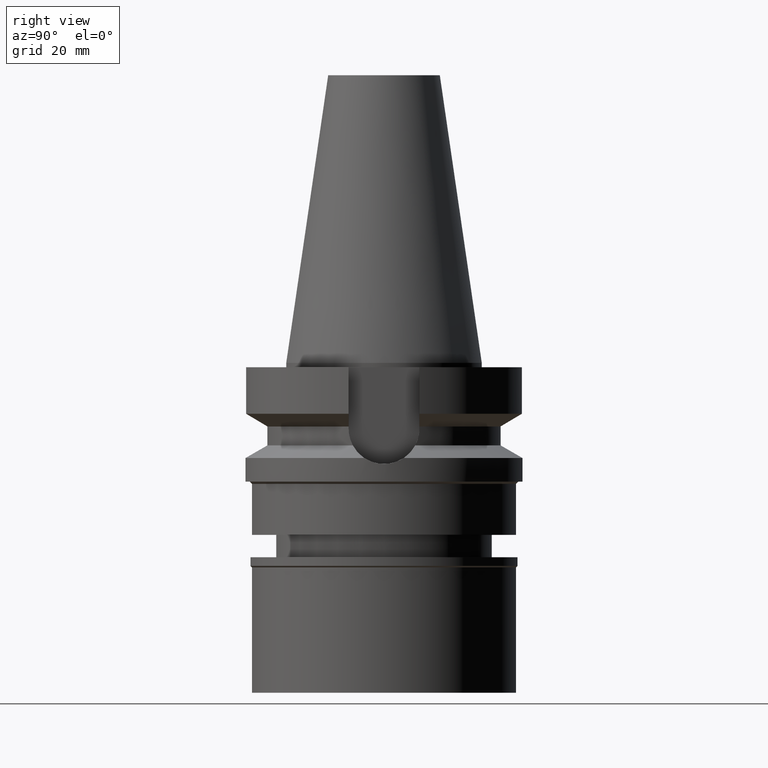
[diagram: clean part render]
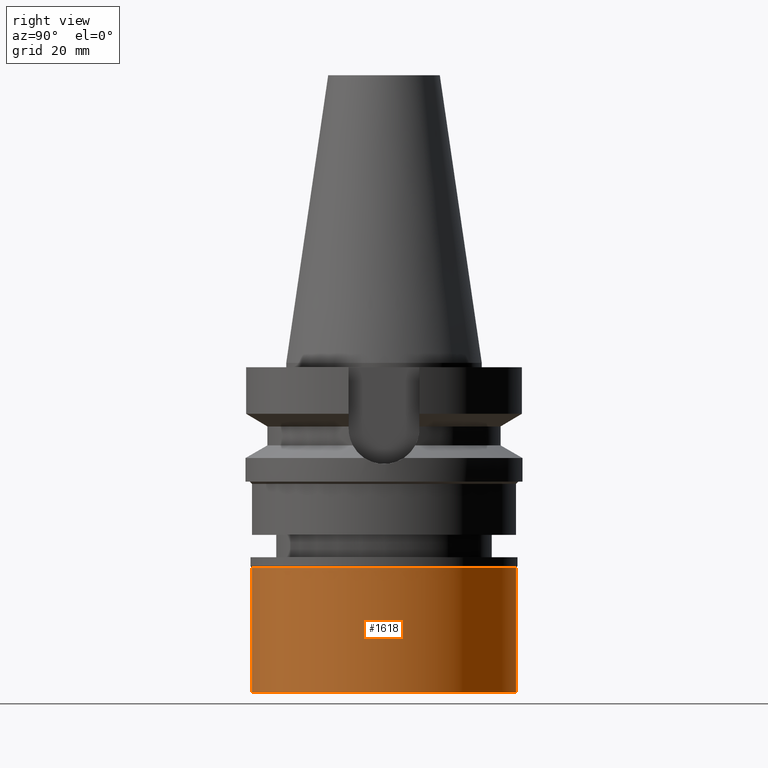
[diagram: same view with one face highlighted and labeled with its STEP entity id]
A machine part, right view. The second image highlights one B-rep face of the part: STEP entity #1618.
In plain terms, the highlighted cylindrical surface (partial cylindrical patch) has radius 30 mm, axis along (0, 0, -1).
Its self-contained STEP definition (entity closure, byte-faithful):
#150 = DIRECTION ( 'NONE',  ( 0.0000000000000000000, 0.0000000000000000000, -1.000000000000000000 ) ) ;
#301 = EDGE_CURVE ( 'NONE', #2358, #997, #2101, .T. ) ;
#360 = CARTESIAN_POINT ( 'NONE',  ( 0.0000000000000000000, 0.0000000000000000000, -2.299999999999999822 ) ) ;
#434 = CARTESIAN_POINT ( 'NONE',  ( 0.0000000000000000000, 0.0000000000000000000, 0.0000000000000000000 ) ) ;
#439 = VERTEX_POINT ( 'NONE', #2187 ) ;
#484 = CARTESIAN_POINT ( 'NONE',  ( 0.0000000000000000000, 30.00000000000000000, -30.80000000000000071 ) ) ;
#492 = VERTEX_POINT ( 'NONE', #1116 ) ;
#582 = DIRECTION ( 'NONE',  ( 0.0000000000000000000, -1.000000000000000000, 0.0000000000000000000 ) ) ;
#588 = ORIENTED_EDGE ( 'NONE', *, *, #2388, .T. ) ;
#639 = LINE ( 'NONE', #2724, #2911 ) ;
#873 = DIRECTION ( 'NONE',  ( 0.0000000000000000000, 0.0000000000000000000, -1.000000000000000000 ) ) ;
#988 = CARTESIAN_POINT ( 'NONE',  ( 0.0000000000000000000, 0.0000000000000000000, -30.80000000000000071 ) ) ;
#997 = VERTEX_POINT ( 'NONE', #484 ) ;
#1116 = CARTESIAN_POINT ( 'NONE',  ( 0.0000000000000000000, -30.00000000000000000, -2.299999999999999822 ) ) ;
#1337 = DIRECTION ( 'NONE',  ( 0.0000000000000000000, -1.000000000000000000, 0.0000000000000000000 ) ) ;
#1500 = CIRCLE ( 'NONE', #2271, 30.00000000000000000 ) ;
#1533 = DIRECTION ( 'NONE',  ( 0.0000000000000000000, 0.0000000000000000000, -1.000000000000000000 ) ) ;
#1566 = FACE_OUTER_BOUND ( 'NONE', #1929, .T. ) ;
#1618 = ADVANCED_FACE ( 'NONE', ( #1566 ), #2221, .T. ) ;
#1706 = AXIS2_PLACEMENT_3D ( 'NONE', #988, #2586, #582 ) ;
#1785 = DIRECTION ( 'NONE',  ( 0.0000000000000000000, 0.0000000000000000000, -1.000000000000000000 ) ) ;
#1807 = ORIENTED_EDGE ( 'NONE', *, *, #2639, .T. ) ;
#1883 = LINE ( 'NONE', #2683, #2961 ) ;
#1929 = EDGE_LOOP ( 'NONE', ( #588, #1807, #1939, #2647 ) ) ;
#1939 = ORIENTED_EDGE ( 'NONE', *, *, #301, .T. ) ;
#1984 = AXIS2_PLACEMENT_3D ( 'NONE', #434, #1533, #1337 ) ;
#2101 = CIRCLE ( 'NONE', #1706, 30.00000000000000000 ) ;
#2187 = CARTESIAN_POINT ( 'NONE',  ( 0.0000000000000000000, 30.00000000000000000, -2.299999999999999822 ) ) ;
#2221 = CYLINDRICAL_SURFACE ( 'NONE', #1984, 30.00000000000000000 ) ;
#2227 = DIRECTION ( 'NONE',  ( 0.0000000000000000000, 1.000000000000000000, 0.0000000000000000000 ) ) ;
#2271 = AXIS2_PLACEMENT_3D ( 'NONE', #360, #150, #2227 ) ;
#2358 = VERTEX_POINT ( 'NONE', #2430 ) ;
#2388 = EDGE_CURVE ( 'NONE', #439, #492, #1500, .T. ) ;
#2430 = CARTESIAN_POINT ( 'NONE',  ( 0.0000000000000000000, -30.00000000000000000, -30.80000000000000071 ) ) ;
#2445 = EDGE_CURVE ( 'NONE', #439, #997, #639, .T. ) ;
#2586 = DIRECTION ( 'NONE',  ( 0.0000000000000000000, 0.0000000000000000000, 1.000000000000000000 ) ) ;
#2639 = EDGE_CURVE ( 'NONE', #492, #2358, #1883, .T. ) ;
#2647 = ORIENTED_EDGE ( 'NONE', *, *, #2445, .F. ) ;
#2683 = CARTESIAN_POINT ( 'NONE',  ( 0.0000000000000000000, -30.00000000000000000, -2.299999999999999822 ) ) ;
#2724 = CARTESIAN_POINT ( 'NONE',  ( 0.0000000000000000000, 30.00000000000000000, -2.299999999999999822 ) ) ;
#2911 = VECTOR ( 'NONE', #1785, 1000.000000000000000 ) ;
#2961 = VECTOR ( 'NONE', #873, 1000.000000000000000 ) ;